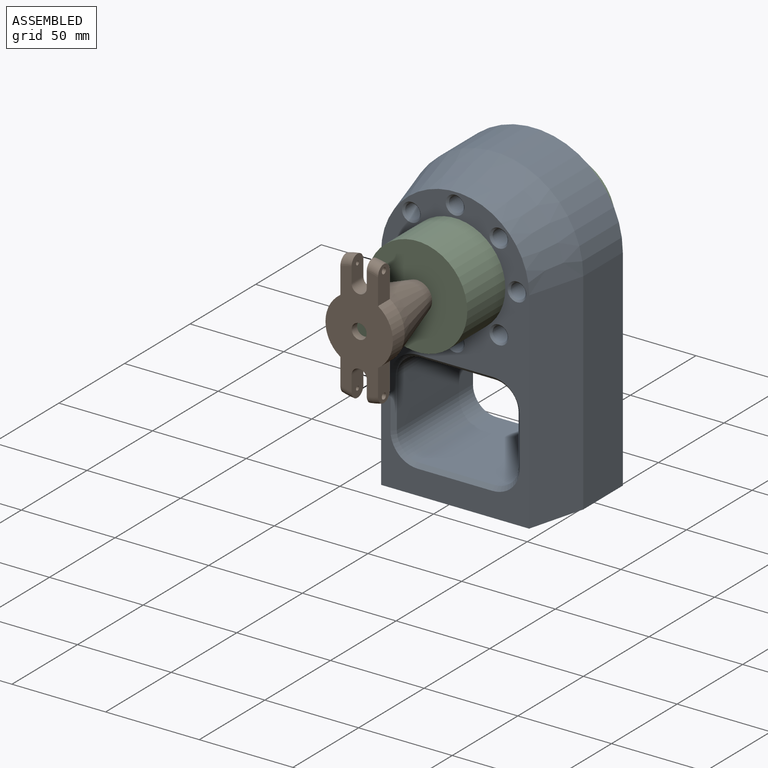
[diagram: assembled view]
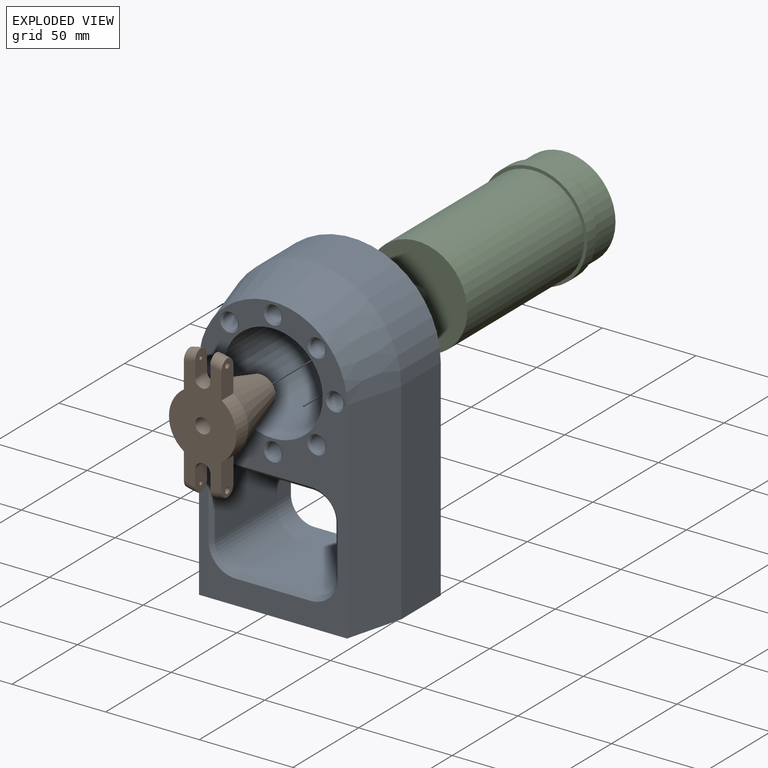
[diagram: exploded view]
GUIDED TOUR — MATED ASSEMBLY (Onshape document e875a9bfb52913d6ce8f56de, AutoMate assembly e875a9bfb52913d6ce8f56de_785e44055aa522793199e645_e272021ed70414dca30d99e8_default)

This assembly has 3 components, labeled P0..P2 below (a component is one placed occurrence of a part; the same part can appear more than once), held together by 3 mates. A mate is a constraint between two components; its type names the relative motion it leaves free:
  CYLINDRICAL — leaves both rotation about and translation along the listed axis free,
  PARALLEL — keeps the two listed directions parallel.
Axis/direction vectors are unit vectors and 'through' points are millimeter coordinates, both in the assembly's world frame.

MATES
  1. PARALLEL "Parallel 1": P0 <-> P2, direction (0.000, 1.000, 0.000) through (7.94, 15.11, 29.00) mm
  2. CYLINDRICAL "Cylindrical 1": P0 <-> P2, axis (0.000, 1.000, 0.000) through (7.94, 15.11, 29.00) mm
  3. CYLINDRICAL "Cylindrical 2": P1 <-> P2, axis (0.000, 1.000, 0.000) through (7.94, -73.89, 29.00) mm

ASSEMBLY ORDER
  1. P2 — the base component [order heuristic]
  2. P0 [order heuristic]
  3. P1 [order heuristic]
Order-tag legend:
  [order heuristic] — this assembly is geometrically interlocked (no collision-free removal order exists), so components are listed in mate-graph order; insertion feasibility is not verified.

Of the 3 components, 3 carry the full construction recipe — the FeatureScript program that regenerates the part's solid from scratch; the rest are supplied as boundary geometry only.
Each toured component is shown spotlighted twice — in the assembled view, then in the exploded view, where a leader line traces a displaced component back to its assembled socket (saturated green if recipe-attached, orange if geometry-only; every other component desaturated gray) — followed by its recipe or geometry summary and the mates that hold it.
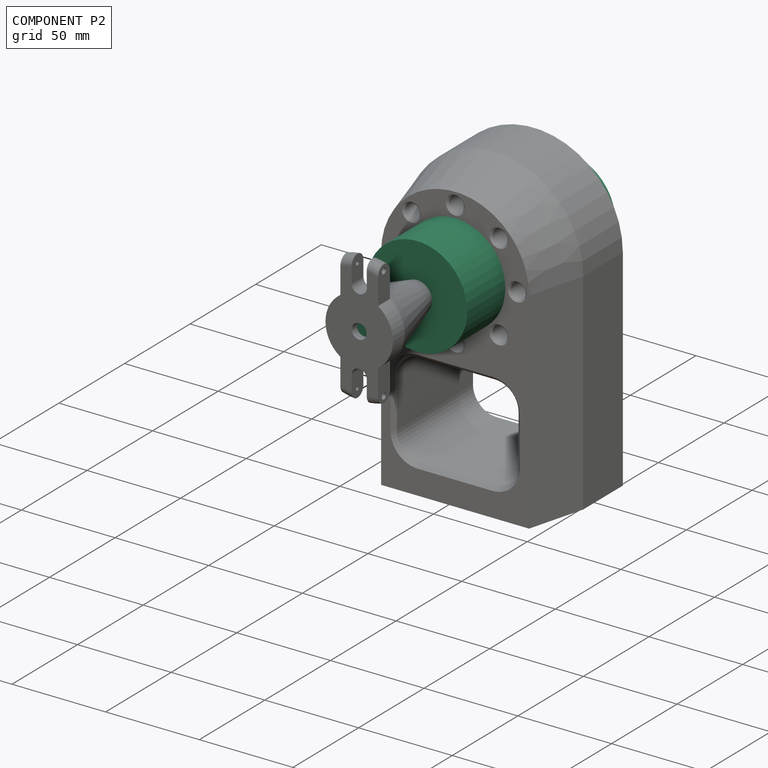
[diagram: component P2 — assembled]
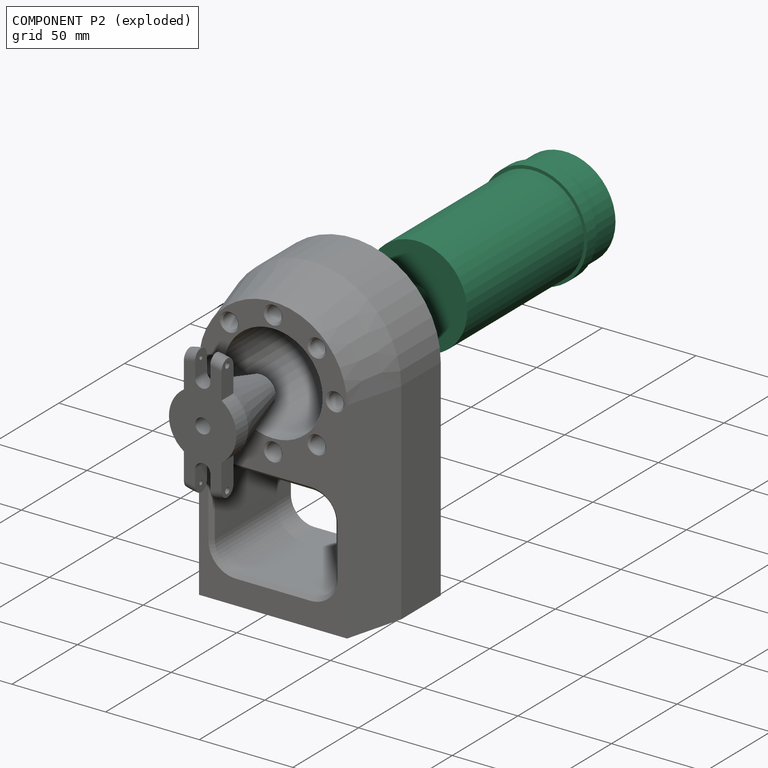
[diagram: component P2 — exploded]
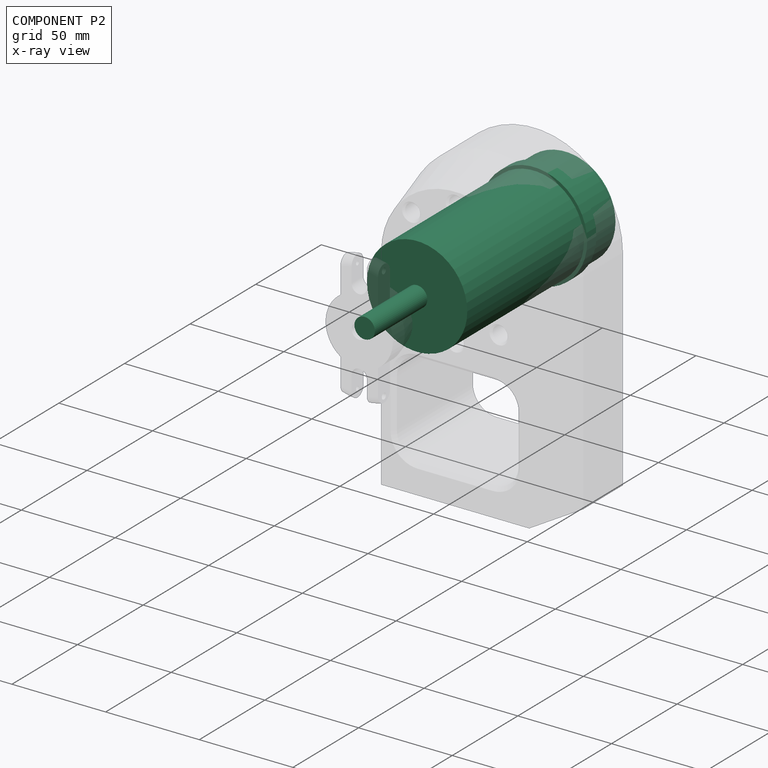
[diagram: component P2 — x-ray view]
COMPONENT P2 — recipe-attached (CADFS 00923949, mesh-verified: the recipe's output STEP matches this component's geometry to below the mesh-comparison resolution (tessellation chordal tolerance ~0.259 mm)).
Held by: PARALLEL mate "Parallel 1" to P0; CYLINDRICAL mate "Cylindrical 1" to P0; CYLINDRICAL mate "Cylindrical 2" to P1.
Construction recipe (FeatureScript — the CAD program that rebuilds this solid; sketch coordinates are in the units given by the * unit suffixes, e.g. mm):

FeatureScript 1511;
import(path : "onshape/std/geometry.fs", version : "1511.0");
import(path : "onshape/std/common.fs", version : "1511.0");
const mm = millimeter;
const VERTEX = EntityType.VERTEX;
const EDGE = EntityType.EDGE;
const FACE = EntityType.FACE;
const BODY = EntityType.BODY;
function v(x, y){return vector(x, y);}
function OD(order){return orderDisambiguation(order);}
function OSD(set){return originalSetDisambiguation(set);}
function TD(topology){return topologyDisambiguation(topology);}
function TDD(query){return trueDependencyDisambiguation(query);}
function sQuery(a, b, c) {return sketchEntityQuery(a, b, c);}

annotation { "Feature Type Name" : "Feature", "Feature Type Description" : "" }
export const myFeature = defineFeature(function(context is Context, id is Id, definition is map)
    precondition{}
    {
        {
            var Q0;
            Q0=qCreatedBy(makeId("Front.planeOp"),FACE);
            var sketch = newSketch(context, id + "F0", { "sketchPlane" : qUnion([Q0])});
            skLineSegment(sketch, "E0", {"start": v(-76.37, 0) * mm, "end": v(94.17, 0) * mm, "construction": true});
            skLineSegment(sketch, "E1", {"start": v(-63.62, 0) * mm, "end": v(-63.62, 26.8) * mm});
            skLineSegment(sketch, "E2", {"start": v(-63.62, 26.8) * mm, "end": v(-46.62, 26.8) * mm});
            skLineSegment(sketch, "E3", {"start": v(-46.62, 26.8) * mm, "end": v(-46.62, 28.5) * mm});
            skLineSegment(sketch, "E4", {"start": v(-46.62, 28.5) * mm, "end": v(-39.62, 28.5) * mm});
            skLineSegment(sketch, "E5", {"start": v(-39.62, 28.5) * mm, "end": v(-39.62, 26.8) * mm});
            skLineSegment(sketch, "E6", {"start": v(-39.62, 26.8) * mm, "end": v(49.38, 26.8) * mm});
            skLineSegment(sketch, "E7", {"start": v(49.38, 26.8) * mm, "end": v(49.38, 5.49) * mm});
            skLineSegment(sketch, "E8", {"start": v(49.38, 5.49) * mm, "end": v(89.38, 5.49) * mm});
            skLineSegment(sketch, "E9", {"start": v(89.38, 5.49) * mm, "end": v(89.38, 0) * mm});
            skLineSegment(sketch, "E10", {"start": v(-63.62, 0) * mm, "end": v(89.38, 0) * mm});
            skSolve(sketch);
        }
        {
            var Q0;
            Q0 = qSketchRegion(id + "F0", true);
            var Q1;
            Q1=sQuery(id+"F0.wireOp",EDGE,"E10");
            revolve(context, id + "F1", {"surfaceOperationType" : NewSurfaceOperationType.NEW, "entities" : qUnion([Q0]), "axis" : qUnion([Q1]), "revolveType" : RevolveType.FULL});
        }
    });
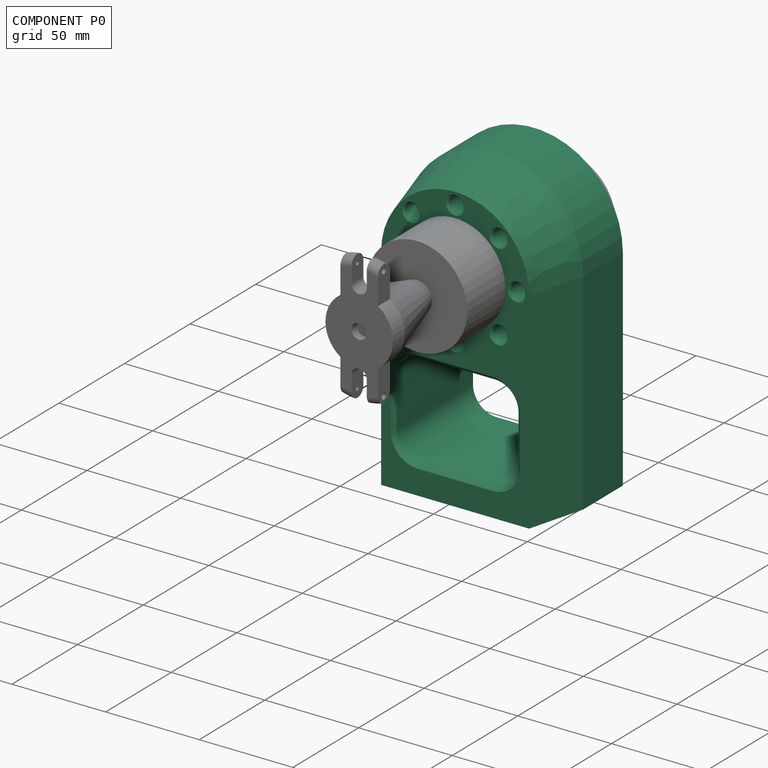
[diagram: component P0 — assembled]
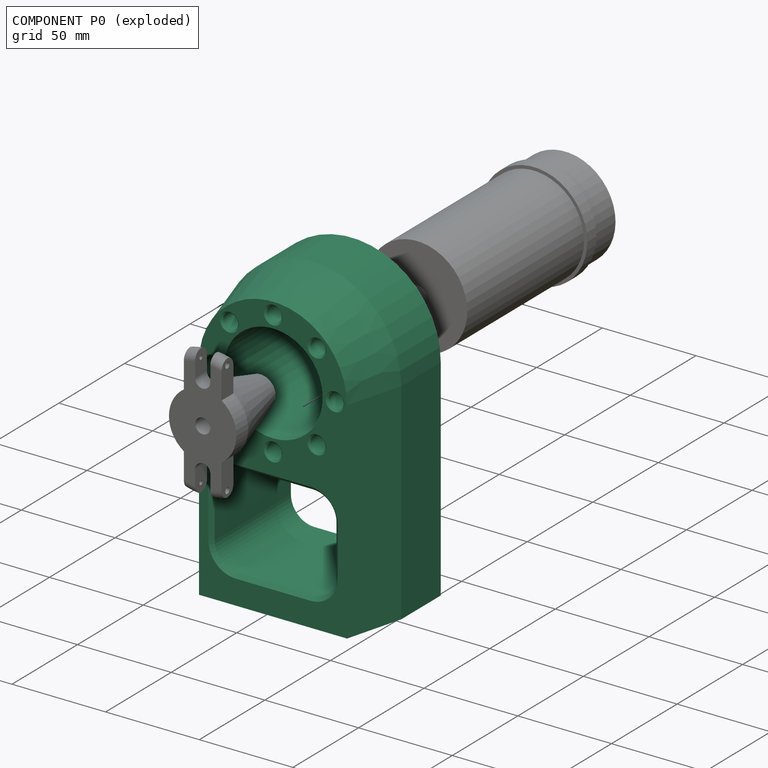
[diagram: component P0 — exploded]
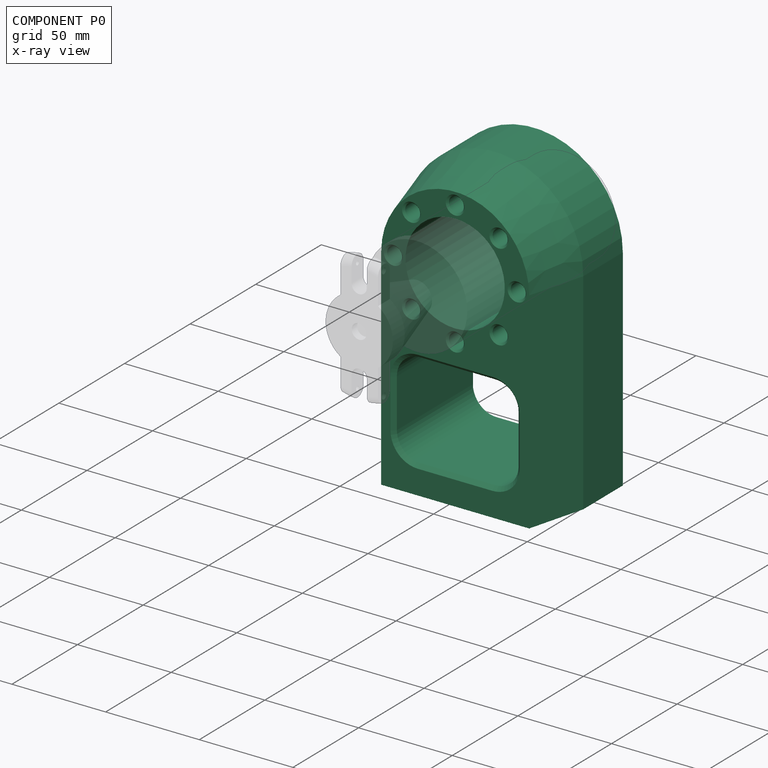
[diagram: component P0 — x-ray view]
COMPONENT P0 — recipe-attached (CADFS 00923950, mesh-verified: the recipe's output STEP matches this component's geometry to below the mesh-comparison resolution (tessellation chordal tolerance ~0.293 mm)).
Held by: PARALLEL mate "Parallel 1" to P2; CYLINDRICAL mate "Cylindrical 1" to P2.
Construction recipe (FeatureScript — the CAD program that rebuilds this solid; sketch coordinates are in the units given by the * unit suffixes, e.g. mm):

FeatureScript 1511;
import(path : "onshape/std/geometry.fs", version : "1511.0");
import(path : "onshape/std/common.fs", version : "1511.0");
const mm = millimeter;
const VERTEX = EntityType.VERTEX;
const EDGE = EntityType.EDGE;
const FACE = EntityType.FACE;
const BODY = EntityType.BODY;
function v(x, y){return vector(x, y);}
function OD(order){return orderDisambiguation(order);}
function OSD(set){return originalSetDisambiguation(set);}
function TD(topology){return topologyDisambiguation(topology);}
function TDD(query){return trueDependencyDisambiguation(query);}
function sQuery(a, b, c) {return sketchEntityQuery(a, b, c);}

annotation { "Feature Type Name" : "Feature", "Feature Type Description" : "" }
export const myFeature = defineFeature(function(context is Context, id is Id, definition is map)
    precondition{}
    {
        {
            var Q0;
            Q0=qCreatedBy(makeId("Front.planeOp"),FACE);
            var sketch = newSketch(context, id + "F0", { "sketchPlane" : qUnion([Q0])});
            skLineSegment(sketch, "E0.top", {"start": v(-46, -58.24) * mm, "end": v(49, -58.24) * mm});
            skLineSegment(sketch, "E0.left", {"start": v(-46, 54.26) * mm, "end": v(-46, -58.24) * mm});
            skLineSegment(sketch, "E0.right", {"start": v(49, 54.26) * mm, "end": v(49, -58.24) * mm});
            skArc(sketch, "E1", {"start": v(49, 54.26) * mm, "mid": v(1.5, 101.76) * mm, "end": v(-46, 54.26) * mm});
            skCircle(sketch, "E2", {"center": v(1.5, 54.26) * mm, "radius": 26.5 * mm});
            skLineSegment(sketch, "E3.bottom", {"start": v(-18.5, 7.76) * mm, "end": v(21.5, 7.76) * mm});
            skLineSegment(sketch, "E3.top", {"start": v(-18.5, -43.24) * mm, "end": v(21.5, -43.24) * mm});
            skLineSegment(sketch, "E3.left", {"start": v(-31, -4.74) * mm, "end": v(-31, -30.74) * mm});
            skLineSegment(sketch, "E3.right", {"start": v(34, -4.74) * mm, "end": v(34, -30.74) * mm});
            skPoint(sketch, "E4.visualSharp", {"position": v(-31, 7.76) * mm});
            skArc(sketch, "E4.filletArc", {"start": v(-18.5, 7.76) * mm, "mid": v(-27.34, 4.1) * mm, "end": v(-31, -4.74) * mm});
            skPoint(sketch, "E5.visualSharp", {"position": v(34, 7.76) * mm});
            skArc(sketch, "E5.filletArc", {"start": v(34, -4.74) * mm, "mid": v(30.34, 4.1) * mm, "end": v(21.5, 7.76) * mm});
            skPoint(sketch, "E6.visualSharp", {"position": v(34, -43.24) * mm});
            skArc(sketch, "E6.filletArc", {"start": v(21.5, -43.24) * mm, "mid": v(30.34, -39.58) * mm, "end": v(34, -30.74) * mm});
            skPoint(sketch, "E7.visualSharp", {"position": v(-31, -43.24) * mm});
            skArc(sketch, "E7.filletArc", {"start": v(-31, -30.74) * mm, "mid": v(-27.34, -39.58) * mm, "end": v(-18.5, -43.24) * mm});
            skLineSegment(sketch, "E8", {"start": v(1.5, 54.26) * mm, "end": v(-66.33, 54.26) * mm, "construction": true});
            skCircle(sketch, "E9", {"center": v(-31.5, 54.26) * mm, "radius": 4 * mm});
            skCircle(sketch, "E10.1.0", {"center": v(-21.83, 77.6) * mm, "radius": 4 * mm});
            skCircle(sketch, "E10.2.0", {"center": v(1.5, 87.26) * mm, "radius": 4 * mm});
            skCircle(sketch, "E10.3.0", {"center": v(24.84, 77.6) * mm, "radius": 4 * mm});
            skCircle(sketch, "E10.4.0", {"center": v(34.5, 54.26) * mm, "radius": 4 * mm});
            skCircle(sketch, "E10.5.0", {"center": v(24.84, 30.93) * mm, "radius": 4 * mm});
            skCircle(sketch, "E10.6.0", {"center": v(1.5, 21.26) * mm, "radius": 4 * mm});
            skCircle(sketch, "E10.7.0", {"center": v(-21.83, 30.93) * mm, "radius": 4 * mm});
            skSolve(sketch);
        }
        {
            var Q0;
            Q0 = qSketchRegion(id + "F0", true);
            extrude(context, id + "F1", {"entities" : qUnion([Q0]), "depth" : 60 * mm, "offsetDistance" : 25 * mm});
        }
        {
            var Q0;
            Q0=makeQuery(id+"F1.opExtrude","CAP_EDGE",EDGE,{"disambiguationData":[OSD([sQuery(id+"F0.wireOp",EDGE,"E9")])],"isStart":false});
            var Q1;
            Q1=makeQuery(id+"F1.opExtrude","CAP_EDGE",EDGE,{"disambiguationData":[OSD([sQuery(id+"F0.wireOp",EDGE,"E10.1.0")])],"isStart":false});
            var Q2;
            Q2=makeQuery(id+"F1.opExtrude","CAP_EDGE",EDGE,{"disambiguationData":[OSD([sQuery(id+"F0.wireOp",EDGE,"E10.2.0")])],"isStart":false});
            var Q3;
            Q3=makeQuery(id+"F1.opExtrude","CAP_EDGE",EDGE,{"disambiguationData":[OSD([sQuery(id+"F0.wireOp",EDGE,"E10.3.0")])],"isStart":false});
            var Q4;
            Q4=makeQuery(id+"F1.opExtrude","CAP_EDGE",EDGE,{"disambiguationData":[OSD([sQuery(id+"F0.wireOp",EDGE,"E10.4.0")])],"isStart":false});
            var Q5;
            Q5=makeQuery(id+"F1.opExtrude","CAP_EDGE",EDGE,{"disambiguationData":[OSD([sQuery(id+"F0.wireOp",EDGE,"E10.5.0")])],"isStart":false});
            var Q6;
            Q6=makeQuery(id+"F1.opExtrude","CAP_EDGE",EDGE,{"disambiguationData":[OSD([sQuery(id+"F0.wireOp",EDGE,"E10.6.0")])],"isStart":false});
            var Q7;
            Q7=makeQuery(id+"F1.opExtrude","CAP_EDGE",EDGE,{"disambiguationData":[OSD([sQuery(id+"F0.wireOp",EDGE,"E10.7.0")])],"isStart":false});
            chamfer(context, id + "F2", {"entities" : qUnion([Q0, Q1, Q2, Q3, Q4, Q5, Q6, Q7]), "width" : 1 * mm, "tangentPropagation" : true});
        }
        {
            var Q0;
            Q0=makeQuery(id+"F1.opExtrude","CAP_EDGE",EDGE,{"disambiguationData":[OSD([sQuery(id+"F0.wireOp",EDGE,"E3.bottom")])],"isStart":false});
            chamfer(context, id + "F3", {"entities" : qUnion([Q0]), "width" : 2 * mm, "tangentPropagation" : true});
        }
        {
            var Q0;
            Q0=makeQuery(id+"F1.opExtrude","CAP_EDGE",EDGE,{"disambiguationData":[OSD([sQuery(id+"F0.wireOp",EDGE,"E1")])],"isStart":false});
            chamfer(context, id + "F4", {"entities" : qUnion([Q0]), "chamferType" : ChamferType.OFFSET_ANGLE, "width" : 8 * mm, "oppositeDirection" : false, "angle" : 75 * degree, "tangentPropagation" : true});
        }
        {
            var Q0;
            Q0=makeQuery(id+"F1.opExtrude","SWEPT_FACE",FACE,{"disambiguationData":[OSD([sQuery(id+"F0.wireOp",EDGE,"E0.top")])]});
            var sketch = newSketch(context, id + "F5", { "sketchPlane" : qUnion([Q0])});
            skLineSegment(sketch, "E11", {"start": v(-96.32, 25) * mm, "end": v(117.52, 25) * mm, "construction": true});
            skPoint(sketch, "E12", {"position": v(-36, 25) * mm});
            skPoint(sketch, "E13", {"position": v(39, 25) * mm});
            skSolve(sketch);
        }
        {
            var Q0;
            Q0=sQuery(id+"F5.wireOp",VERTEX,"E12");
            var Q1;
            Q1=sQuery(id+"F5.wireOp",VERTEX,"E13");
            var Q2;
            Q2=makeQuery(id+"F1.opExtrude","SWEPT_BODY",BODY,{"disambiguationData":[OSD([sQuery(id+"F0.wireOp",EDGE,"E0.top"),sQuery(id+"F0.wireOp",EDGE,"E0.left"),sQuery(id+"F0.wireOp",EDGE,"E0.right"),sQuery(id+"F0.wireOp",EDGE,"E1"),sQuery(id+"F0.wireOp",EDGE,"E2"),sQuery(id+"F0.wireOp",EDGE,"E3.bottom"),sQuery(id+"F0.wireOp",EDGE,"E3.top"),sQuery(id+"F0.wireOp",EDGE,"E3.left"),sQuery(id+"F0.wireOp",EDGE,"E3.right"),sQuery(id+"F0.wireOp",EDGE,"E4.filletArc"),sQuery(id+"F0.wireOp",EDGE,"E5.filletArc"),sQuery(id+"F0.wireOp",EDGE,"E6.filletArc"),sQuery(id+"F0.wireOp",EDGE,"E7.filletArc"),sQuery(id+"F0.wireOp",EDGE,"E9"),sQuery(id+"F0.wireOp",EDGE,"E10.1.0"),sQuery(id+"F0.wireOp",EDGE,"E10.2.0"),sQuery(id+"F0.wireOp",EDGE,"E10.3.0"),sQuery(id+"F0.wireOp",EDGE,"E10.4.0"),sQuery(id+"F0.wireOp",EDGE,"E10.5.0"),sQuery(id+"F0.wireOp",EDGE,"E10.6.0"),sQuery(id+"F0.wireOp",EDGE,"E10.7.0")])]});
            hole(context, id + "F6", {"style" : HoleStyle.SIMPLE, "endStyle" : HoleEndStyle.BLIND, "standardTappedOrClearance" : lookupTablePath({ "standard" : "ISO", "engagement" : "75%", "pitch" : "1.5 mm", "size" : "M10", "type" : "Tapped" }), "standardBlindInLast" : lookupTablePath({ "standard" : "ISO", "engagement" : "75%", "pitch" : "1.5 mm", "size" : "M10", "type" : "Tapped" }), "holeDiameter" : 8.5 * mm, "majorDiameter" : 10 * mm, "showTappedDepth" : true, "holeDepth" : 25 * mm, "isTappedThrough" : true, "tappedDepth" : 20.5 * mm, "tapClearance" : 3, "locations" : qUnion([Q0, Q1]), "scope" : qUnion([Q2])});
        }
    });
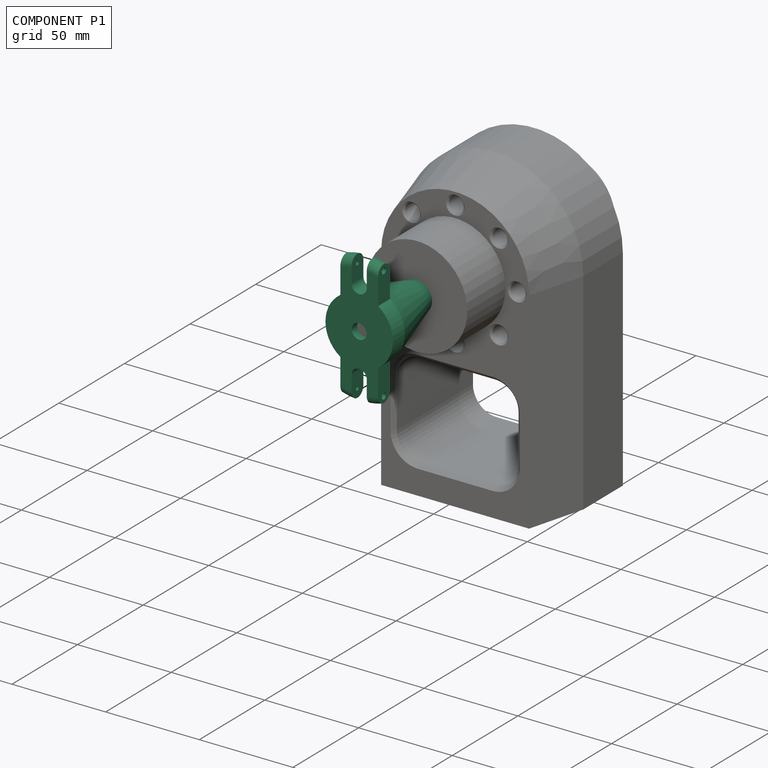
[diagram: component P1 — assembled]
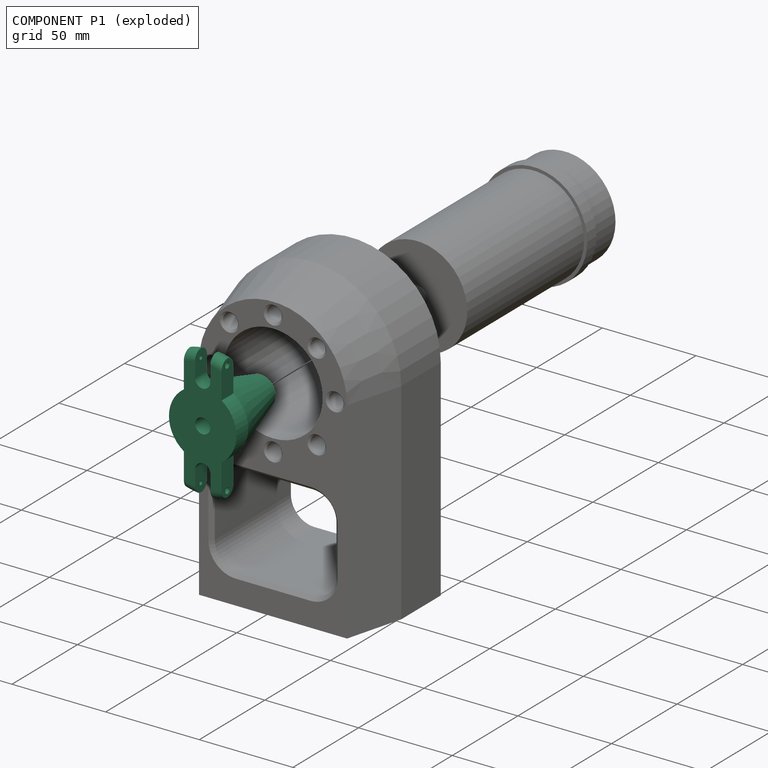
[diagram: component P1 — exploded]
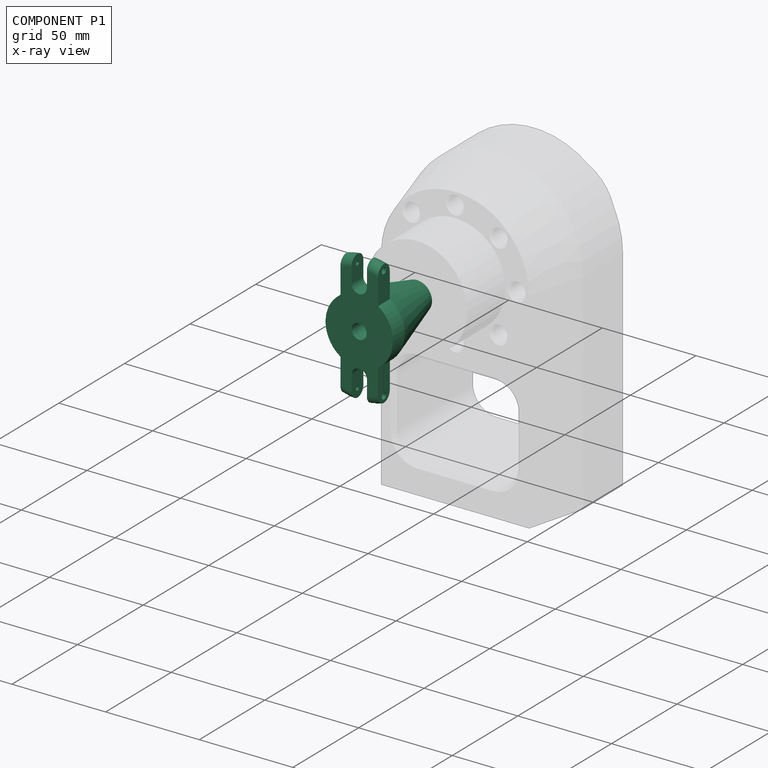
[diagram: component P1 — x-ray view]
COMPONENT P1 — recipe-attached (CADFS 00924061, mesh-verified: the recipe's output STEP matches this component's geometry to below the mesh-comparison resolution (tessellation chordal tolerance ~0.135 mm)).
Held by: CYLINDRICAL mate "Cylindrical 2" to P2.
Construction recipe (FeatureScript — the CAD program that rebuilds this solid; sketch coordinates are in the units given by the * unit suffixes, e.g. mm):

FeatureScript 1511;
import(path : "onshape/std/geometry.fs", version : "1511.0");
import(path : "onshape/std/common.fs", version : "1511.0");
const mm = millimeter;
const VERTEX = EntityType.VERTEX;
const EDGE = EntityType.EDGE;
const FACE = EntityType.FACE;
const BODY = EntityType.BODY;
function v(x, y){return vector(x, y);}
function OD(order){return orderDisambiguation(order);}
function OSD(set){return originalSetDisambiguation(set);}
function TD(topology){return topologyDisambiguation(topology);}
function TDD(query){return trueDependencyDisambiguation(query);}
function sQuery(a, b, c) {return sketchEntityQuery(a, b, c);}

annotation { "Feature Type Name" : "Feature", "Feature Type Description" : "" }
export const myFeature = defineFeature(function(context is Context, id is Id, definition is map)
    precondition{}
    {
        {
            var Q0;
            Q0=qCreatedBy(makeId("Front.planeOp"),FACE);
            var sketch = newSketch(context, id + "F0", { "sketchPlane" : qUnion([Q0])});
            skLineSegment(sketch, "E0", {"start": v(-22.43, 4) * mm, "end": v(21.7, 4) * mm});
            skLineSegment(sketch, "E1", {"start": v(21.7, 4) * mm, "end": v(21.7, 35) * mm});
            skLineSegment(sketch, "E2", {"start": v(21.7, 35) * mm, "end": v(12.7, 35) * mm});
            skLineSegment(sketch, "E3", {"start": v(-22.43, 8) * mm, "end": v(-22.43, 4) * mm});
            skLineSegment(sketch, "E4", {"start": v(12.7, 35) * mm, "end": v(12.7, 18) * mm});
            skLineSegment(sketch, "E5", {"start": v(12.7, 18) * mm, "end": v(-22.43, 8) * mm});
            skLineSegment(sketch, "E6", {"start": v(-71.73, 0) * mm, "end": v(96.24, 0) * mm, "construction": true});
            skSolve(sketch);
        }
        {
            var Q0;
            Q0 = qSketchRegion(id + "F0", true);
            var Q1;
            Q1=sQuery(id+"F0.wireOp",EDGE,"E6");
            revolve(context, id + "F1", {"surfaceOperationType" : NewSurfaceOperationType.NEW, "entities" : qUnion([Q0]), "axis" : qUnion([Q1]), "revolveType" : RevolveType.FULL});
        }
        {
            var Q0;
            Q0=makeQuery(id+"F1.opRevolve","SWEPT_EDGE",EDGE,{"disambiguationData":[OSD([sQuery(id+"F0.wireOp",EDGE,"E1"),sQuery(id+"F0.wireOp",EDGE,"E2")])]});
            var Q1;
            Q1=makeQuery(id+"F1.opRevolve","SWEPT_EDGE",EDGE,{"disambiguationData":[OSD([sQuery(id+"F0.wireOp",EDGE,"E2"),sQuery(id+"F0.wireOp",EDGE,"E4")])]});
            fillet(context, id + "F2", {"entities" : qUnion([Q0, Q1]), "radius" : 4.5 * mm, "tangentPropagation" : true, "allowEdgeOverflow" : false});
        }
        {
            var Q0;
            Q0=makeQuery(id+"F1.opRevolve","SWEPT_FACE",FACE,{"disambiguationData":[OSD([sQuery(id+"F0.wireOp",EDGE,"E1")])]});
            var sketch = newSketch(context, id + "F3", { "sketchPlane" : qUnion([Q0])});
            skLineSegment(sketch, "E7.bottom", {"start": v(-4.05, 39.3) * mm, "end": v(4.05, 39.3) * mm});
            skLineSegment(sketch, "E7.left", {"start": v(-4.05, 39.3) * mm, "end": v(-4.05, 22.04) * mm});
            skLineSegment(sketch, "E7.right", {"start": v(4.05, 39.3) * mm, "end": v(4.05, 22.04) * mm});
            skArc(sketch, "E8", {"start": v(-4.05, 22.04) * mm, "mid": v(0, 18) * mm, "end": v(4.05, 22.04) * mm});
            skLineSegment(sketch, "E9", {"start": v(0, 0) * mm, "end": v(57.65, 0) * mm, "construction": true});
            skLineSegment(sketch, "E10.MirrorCS", {"start": v(4.05, -39.32) * mm, "end": v(4.05, -22.06) * mm});
            skLineSegment(sketch, "E11.MirrorCS", {"start": v(-4.05, -39.32) * mm, "end": v(4.05, -39.32) * mm});
            skArc(sketch, "E12.MirrorCS", {"start": v(-4.05, -22.06) * mm, "mid": v(0, -18) * mm, "end": v(4.05, -22.06) * mm});
            skLineSegment(sketch, "E13.MirrorCS", {"start": v(-4.05, -39.32) * mm, "end": v(-4.05, -22.06) * mm});
            skArc(sketch, "E14.0", {"start": v(-10.05, -14.94) * mm, "mid": v(-18, 0) * mm, "end": v(-10.05, 14.93) * mm});
            skLineSegment(sketch, "E15", {"start": v(-10.05, 35.24) * mm, "end": v(-10.05, 14.93) * mm});
            skArc(sketch, "E16", {"start": v(-10.05, 35.24) * mm, "mid": v(-36.65, 0) * mm, "end": v(-10.05, -35.25) * mm});
            skLineSegment(sketch, "E17.trimOffspring", {"start": v(-10.05, -14.94) * mm, "end": v(-10.05, -35.25) * mm});
            skLineSegment(sketch, "E18", {"start": v(0, 27.62) * mm, "end": v(0, -17.09) * mm, "construction": true});
            skLineSegment(sketch, "E19.MirrorCS", {"start": v(10.05, -14.94) * mm, "end": v(10.05, -35.25) * mm});
            skLineSegment(sketch, "E20.MirrorCS", {"start": v(10.05, 35.24) * mm, "end": v(10.05, 14.93) * mm});
            skArc(sketch, "E21.MirrorCS", {"start": v(10.05, -14.94) * mm, "mid": v(18, 0) * mm, "end": v(10.05, 14.93) * mm});
            skArc(sketch, "E22.MirrorCS", {"start": v(10.05, 35.24) * mm, "mid": v(36.65, 0) * mm, "end": v(10.05, -35.25) * mm});
            skArc(sketch, "E23", {"start": v(10.05, 14.93) * mm, "mid": v(-14.93, 10.04) * mm, "end": v(-10.05, -14.94) * mm, "construction": true});
            skSolve(sketch);
        }
        {
            var Q0;
            Q0 = qSketchRegion(id + "F3", true);
            extrude(context, id + "F4", {"entities" : qUnion([Q0]), "operationType" : NewBodyOperationType.REMOVE, "oppositeDirection" : true, "depth" : 25 * mm, "offsetDistance" : 25 * mm});
        }
        {
            var Q0;
            Q0=makeQuery(id+"F4.boolean.opBoolean","COPY",FACE,{"derivedFrom":makeQuery(id+"F4.opExtrude","SWEPT_FACE",FACE,{"disambiguationData":[OSD([sQuery(id+"F3.wireOp",EDGE,"E15")])]})});
            var sketch = newSketch(context, id + "F5", { "sketchPlane" : qUnion([Q0])});
            skLineSegment(sketch, "E24.0", {"start": v(12.7, 30.22) * mm, "end": v(12.7, 22.04) * mm, "construction": true});
            skFitSpline(sketch, "E25.0", {"points": [v(12.7, 30.22) * mm, v(12.7, 30.52) * mm, v(12.77, 31.12) * mm, v(12.98, 31.82) * mm, v(13.23, 32.36) * mm, v(13.46, 32.74) * mm, v(13.72, 33.1) * mm, v(14.01, 33.43) * mm, v(14.34, 33.73) * mm, v(14.7, 34) * mm, v(15.08, 34.23) * mm, v(15.62, 34.48) * mm, v(16.32, 34.7) * mm, v(17.06, 34.77) * mm, v(17.65, 34.74) * mm, v(18.09, 34.68) * mm, v(18.52, 34.57) * mm, v(18.94, 34.42) * mm, v(19.34, 34.23) * mm, v(19.72, 34) * mm, v(20.08, 33.73) * mm, v(20.4, 33.43) * mm, v(20.7, 33.1) * mm, v(21.05, 32.62) * mm, v(21.32, 32.1) * mm, v(21.52, 31.54) * mm, v(21.67, 30.96) * mm, v(21.7, 30.52) * mm, v(21.7, 30.22) * mm], "construction": true});
            skLineSegment(sketch, "E26.0", {"start": v(21.7, 30.22) * mm, "end": v(21.7, 22.04) * mm, "construction": true});
            skLineSegment(sketch, "E27", {"start": v(12.7, 30.22) * mm, "end": v(21.7, 30.22) * mm, "construction": true});
            skPoint(sketch, "E28", {"position": v(17.2, 30.22) * mm});
            skLineSegment(sketch, "E29.MirrorCS", {"start": v(12.7, -30.22) * mm, "end": v(12.7, -22.04) * mm, "construction": true});
            skFitSpline(sketch, "E30.MirrorCS", {"points": [v(12.7, -30.22) * mm, v(12.7, -30.52) * mm, v(12.77, -31.12) * mm, v(12.98, -31.82) * mm, v(13.23, -32.36) * mm, v(13.46, -32.74) * mm, v(13.72, -33.1) * mm, v(14.01, -33.43) * mm, v(14.34, -33.73) * mm, v(14.7, -34) * mm, v(15.08, -34.23) * mm, v(15.62, -34.48) * mm, v(16.32, -34.7) * mm, v(17.06, -34.77) * mm, v(17.65, -34.74) * mm, v(18.09, -34.68) * mm, v(18.52, -34.57) * mm, v(18.94, -34.42) * mm, v(19.34, -34.23) * mm, v(19.72, -34) * mm, v(20.08, -33.73) * mm, v(20.4, -33.43) * mm, v(20.7, -33.1) * mm, v(21.05, -32.62) * mm, v(21.32, -32.1) * mm, v(21.52, -31.54) * mm, v(21.67, -30.96) * mm, v(21.7, -30.52) * mm, v(21.7, -30.22) * mm], "construction": true});
            skLineSegment(sketch, "E31.MirrorCS", {"start": v(12.7, -30.22) * mm, "end": v(21.7, -30.22) * mm, "construction": true});
            skLineSegment(sketch, "E32.MirrorCS", {"start": v(21.7, -30.22) * mm, "end": v(21.7, -22.04) * mm, "construction": true});
            skPoint(sketch, "E33.MirrorP", {"position": v(17.2, -30.22) * mm});
            skSolve(sketch);
        }
        {
            var Q0;
            Q0=sQuery(id+"F5.wireOp",VERTEX,"E28");
            var Q1;
            Q1=sQuery(id+"F5.wireOp",VERTEX,"E33.MirrorP");
            var Q2;
            Q2=makeQuery(id+"F1.opRevolve","SWEPT_BODY",BODY,{"disambiguationData":[OSD([sQuery(id+"F0.wireOp",EDGE,"E0"),sQuery(id+"F0.wireOp",EDGE,"E1"),sQuery(id+"F0.wireOp",EDGE,"E2"),sQuery(id+"F0.wireOp",EDGE,"E3"),sQuery(id+"F0.wireOp",EDGE,"E4"),sQuery(id+"F0.wireOp",EDGE,"E5")])]});
            hole(context, id + "F6", {"style" : HoleStyle.C_BORE, "endStyle" : HoleEndStyle.THROUGH, "holeDiameter" : 2.2 * mm, "cBoreDiameter" : 3.2 * mm, "cBoreDepth" : 6 * mm, "majorDiameter" : 5 * mm, "isTappedThrough" : true, "tappedDepth" : 20.5 * mm, "tapClearance" : 3, "locations" : qUnion([Q0, Q1]), "scope" : qUnion([Q2])});
        }
    });
PROVENANCE & LICENSES
Assembly (occurrences, transforms, mates, per-part STEP geometry): AutoMate dataset, Zenodo record 7776208, CC0.
Construction recipes: CADFS (HuggingFace VladPyatov/CADFS, CC-BY-4.0, layered over the ABC dataset), FeatureScript reconstruction programs keyed by ABC model id.
Join: ABC meta listings map ABC model id -> Onshape documentId; within a shared document, parts are matched by geometric signature (bounding-box dims + volume at 0.1% relative tolerance, exact B-rep face/solid counts).
Verification: 3 of this assembly's 3 components carry a recipe attachment, and every attachment is mesh-verified: the CADFS STEP and the AutoMate member STEP were compared as meshes in their shared local frame (symmetric sampled-point-to-mesh distance); worst across the 3 attachments: below the mesh-comparison resolution (tessellation chordal tolerance ~0.293 mm) on a 195 mm part.
Renders: orthographic iso camera (az 35 / el 25); the floor grid conveys scale (grid pitch printed in each image; no ruler). In the exploded view each component is displaced by its stored offset vector: the offsets alone carry the explosion direction (mate normal/axis signs are not orientation cues and do not encode it), and separation distances are assigned per mate-chain, not proportionally to assembly-order depth.
